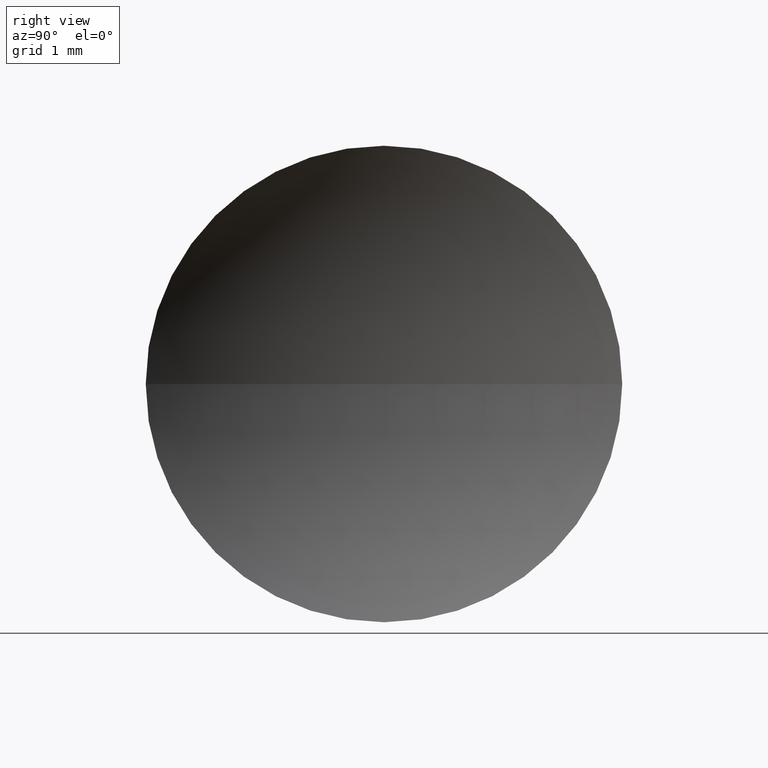
[diagram: clean part render]
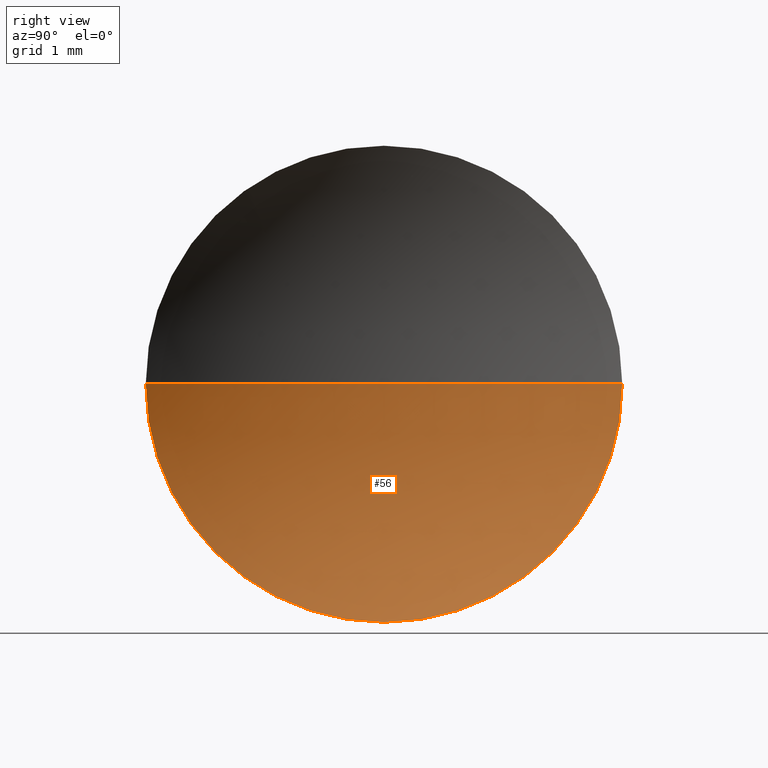
[diagram: same view with one face highlighted and labeled with its STEP entity id]
A machine part, right view. The second image highlights one B-rep face of the part: STEP entity #56.
In plain terms, the highlighted spherical surface has radius 6.08 mm.
Its self-contained STEP definition (entity closure, byte-faithful):
#5 = EDGE_CURVE ( 'NONE', #199, #67, #150, .T. ) ;
#8 = DIRECTION ( 'NONE',  ( 0.0000000000000000000, -1.224646799147353200E-016, 1.000000000000000000 ) ) ;
#9 = ORIENTED_EDGE ( 'NONE', *, *, #74, .F. ) ;
#10 = CARTESIAN_POINT ( 'NONE',  ( 25.89147788526684100, 13.04452057459747900, 0.0000000000000000000 ) ) ;
#21 = AXIS2_PLACEMENT_3D ( 'NONE', #68, #142, #182 ) ;
#22 = ORIENTED_EDGE ( 'NONE', *, *, #119, .F. ) ;
#26 = DIRECTION ( 'NONE',  ( 0.0000000000000000000, -1.000000000000000000, -1.224646799147353200E-016 ) ) ;
#30 = CIRCLE ( 'NONE', #212, 3.149999999999998100 ) ;
#31 = AXIS2_PLACEMENT_3D ( 'NONE', #90, #110, #184 ) ;
#52 = FACE_OUTER_BOUND ( 'NONE', #141, .T. ) ;
#53 = CARTESIAN_POINT ( 'NONE',  ( 31.09185287174618400, 13.04452057459747900, 0.0000000000000000000 ) ) ;
#55 = DIRECTION ( 'NONE',  ( -1.000000000000000000, -0.0000000000000000000, -0.0000000000000000000 ) ) ;
#56 = ADVANCED_FACE ( 'NONE', ( #52 ), #208, .F. ) ;
#67 = VERTEX_POINT ( 'NONE', #111 ) ;
#68 = CARTESIAN_POINT ( 'NONE',  ( 25.89147788526684100, 13.04452057459747900, 0.0000000000000000000 ) ) ;
#70 = EDGE_CURVE ( 'NONE', #199, #229, #30, .T. ) ;
#74 = EDGE_CURVE ( 'NONE', #229, #99, #105, .T. ) ;
#78 = CARTESIAN_POINT ( 'NONE',  ( 31.09185287174618400, 13.04452057459747900, 0.0000000000000000000 ) ) ;
#90 = CARTESIAN_POINT ( 'NONE',  ( 31.09185287174618400, 13.04452057459747900, 0.0000000000000000000 ) ) ;
#94 = ORIENTED_EDGE ( 'NONE', *, *, #5, .T. ) ;
#99 = VERTEX_POINT ( 'NONE', #173 ) ;
#102 = CARTESIAN_POINT ( 'NONE',  ( 25.89147788526684100, 13.04452057459747900, -3.149999999999998100 ) ) ;
#105 = CIRCLE ( 'NONE', #21, 3.149999999999998100 ) ;
#110 = DIRECTION ( 'NONE',  ( 0.0000000000000000000, 0.0000000000000000000, 1.000000000000000000 ) ) ;
#111 = CARTESIAN_POINT ( 'NONE',  ( 25.01185287174618200, 13.04452057459747900, 0.0000000000000000000 ) ) ;
#119 = EDGE_CURVE ( 'NONE', #99, #67, #124, .T. ) ;
#122 = CARTESIAN_POINT ( 'NONE',  ( 25.89147788526684100, 16.19452057459747600, 3.857637417314161700E-016 ) ) ;
#124 = CIRCLE ( 'NONE', #216, 6.080000000000001800 ) ;
#134 = DIRECTION ( 'NONE',  ( -1.000000000000000000, 0.0000000000000000000, 0.0000000000000000000 ) ) ;
#141 = EDGE_LOOP ( 'NONE', ( #211, #94, #22, #9 ) ) ;
#142 = DIRECTION ( 'NONE',  ( -1.000000000000000000, -0.0000000000000000000, -0.0000000000000000000 ) ) ;
#150 = CIRCLE ( 'NONE', #196, 6.080000000000001800 ) ;
#173 = CARTESIAN_POINT ( 'NONE',  ( 25.89147788526684100, 9.894520574597480700, 0.0000000000000000000 ) ) ;
#182 = DIRECTION ( 'NONE',  ( 0.0000000000000000000, 0.0000000000000000000, 1.000000000000000000 ) ) ;
#184 = DIRECTION ( 'NONE',  ( 0.0000000000000000000, -1.000000000000000000, 0.0000000000000000000 ) ) ;
#196 = AXIS2_PLACEMENT_3D ( 'NONE', #53, #8, #26 ) ;
#199 = VERTEX_POINT ( 'NONE', #122 ) ;
#207 = DIRECTION ( 'NONE',  ( 0.0000000000000000000, 0.0000000000000000000, 1.000000000000000000 ) ) ;
#208 = SPHERICAL_SURFACE ( 'NONE', #31, 6.080000000000001800 ) ;
#211 = ORIENTED_EDGE ( 'NONE', *, *, #70, .F. ) ;
#212 = AXIS2_PLACEMENT_3D ( 'NONE', #10, #55, #207 ) ;
#216 = AXIS2_PLACEMENT_3D ( 'NONE', #78, #232, #134 ) ;
#229 = VERTEX_POINT ( 'NONE', #102 ) ;
#232 = DIRECTION ( 'NONE',  ( 0.0000000000000000000, 0.0000000000000000000, -1.000000000000000000 ) ) ;